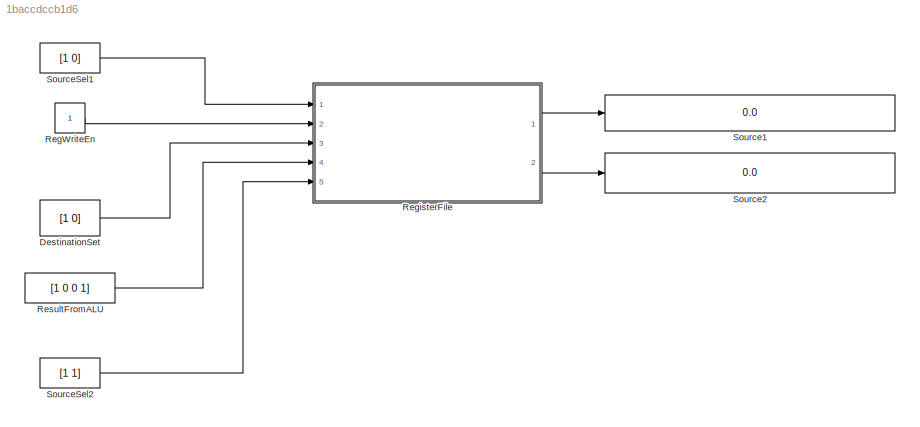
MODEL slx_1baccdccb1d6
KIND model
CONFIG AbsTol = auto
CONFIG EnableMultiTasking = off
CONFIG FixedStep = auto
CONFIG MaxStep = auto
CONFIG MinStep = auto
CONFIG RelTol = 1e-3
CONFIG SampleTimeConstraint = Unconstrained
CONFIG SolverName = VariableStepAuto
CONFIG StartTime = 0.0
CONFIG StopTime = 10.0
BLOCK [Constant] DestinationSet
  Value = [1 0]
BLOCK [Constant] RegWriteEn
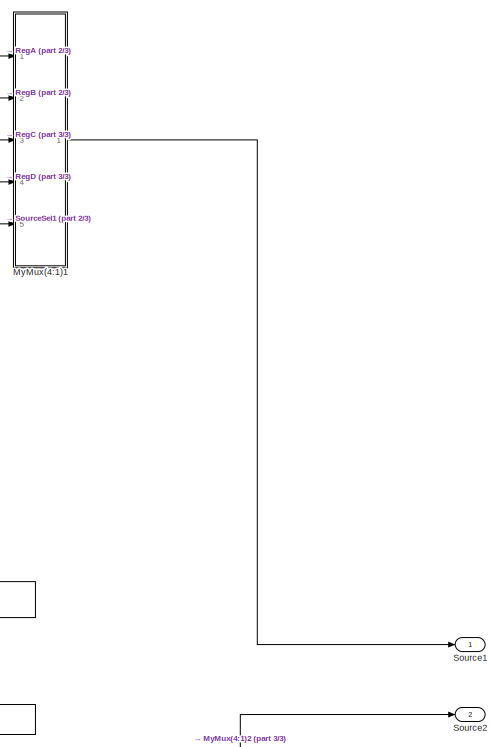
[diagram: RegisterFile - part 1/3, top right region]
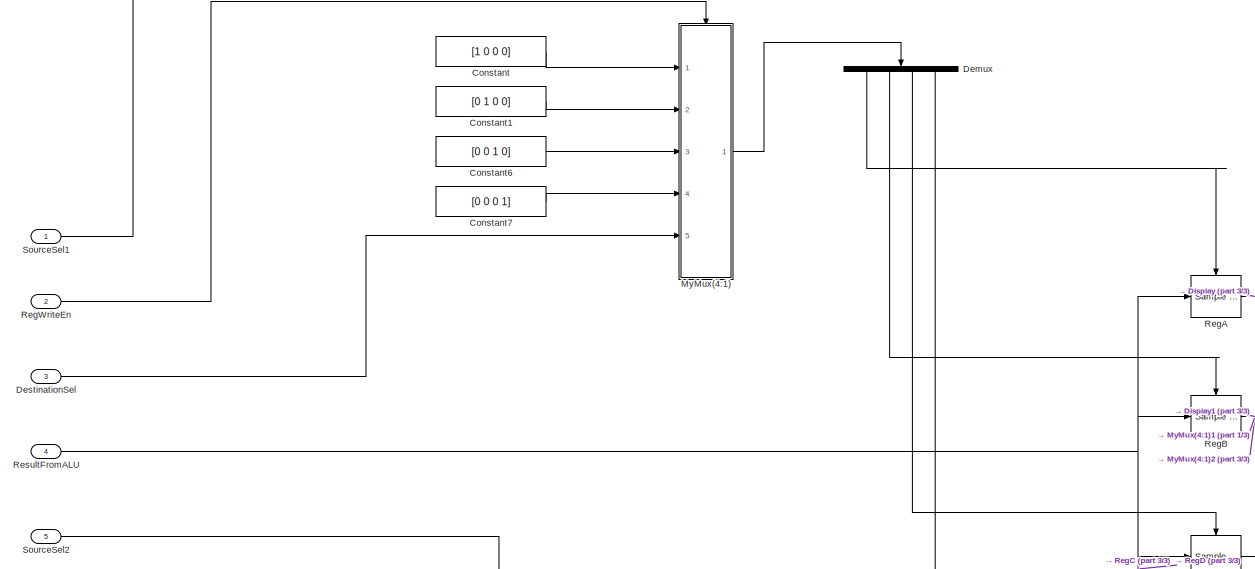
[diagram: RegisterFile - part 2/3, middle left region]
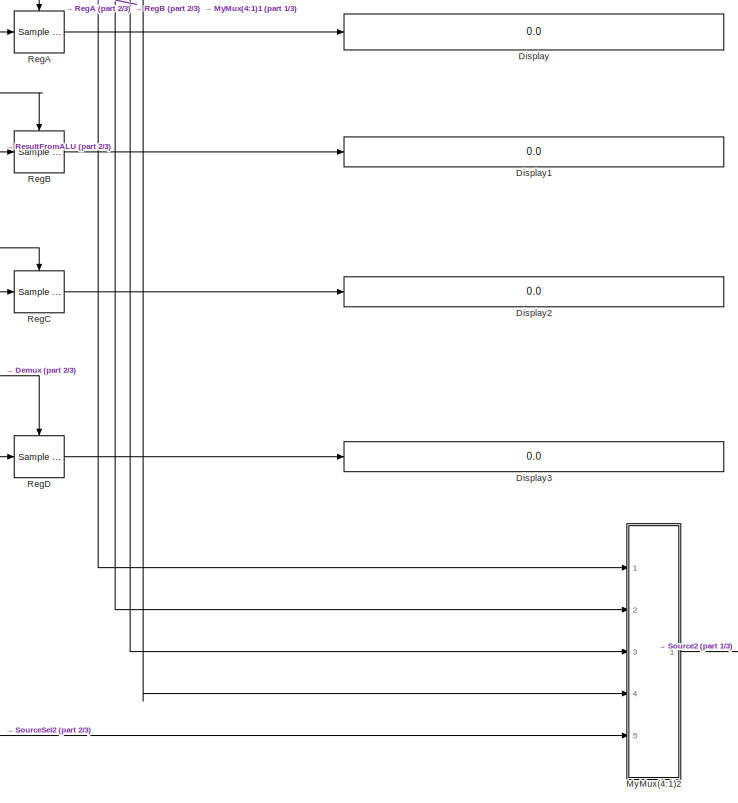
[diagram: RegisterFile - part 3/3, bottom center region]
BLOCK [SubSystem] RegisterFile
  Ports = [5, 2]
  RequestExecContextInheritance = off
BLOCK [Constant] RegisterFile/Constant
  Value = [1 0 0 0]
BLOCK [Constant] RegisterFile/Constant1
  Value = [0 1 0 0]
BLOCK [Constant] RegisterFile/Constant6
  Value = [0 0 1 0]
BLOCK [Constant] RegisterFile/Constant7
  Value = [0 0 0 1]
BLOCK [Demux] RegisterFile/Demux
  NameLocation = left
  Ports = [1, 4]
BLOCK [Inport] RegisterFile/DestinationSel
  Port = 3
BLOCK [Display] RegisterFile/Display
  Decimation = 1
  Ports = [1]
BLOCK [Display] RegisterFile/Display1
  Decimation = 1
  Ports = [1]
BLOCK [Display] RegisterFile/Display2
  Decimation = 1
  Ports = [1]
BLOCK [Display] RegisterFile/Display3
  Decimation = 1
  Ports = [1]
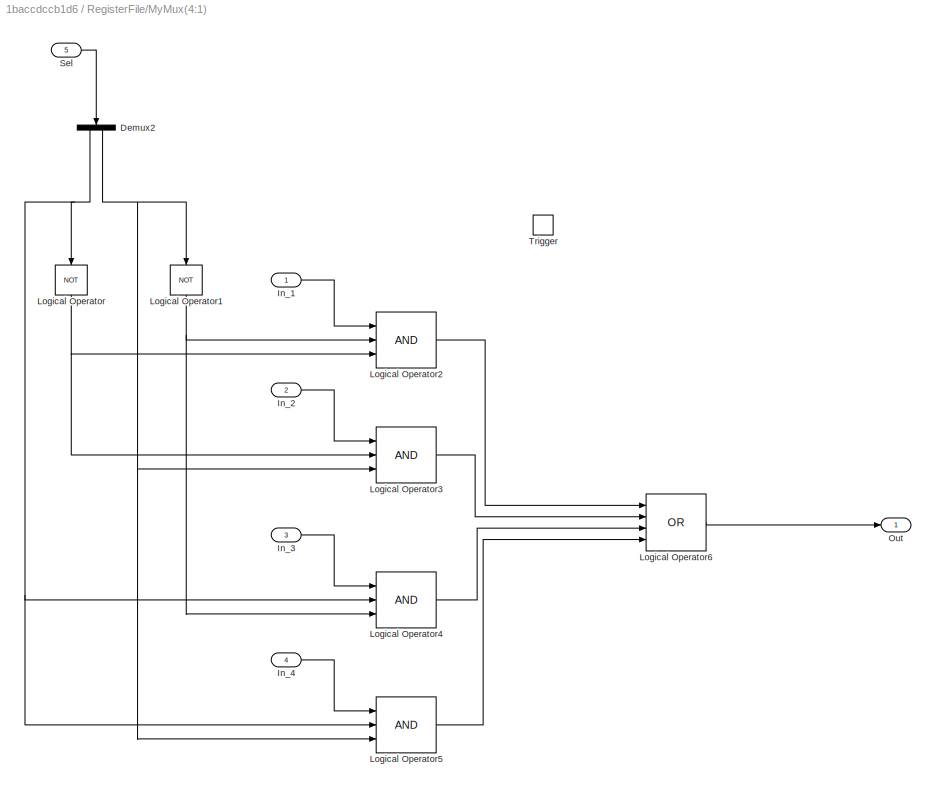
BLOCK [SubSystem] RegisterFile/MyMux(4:1)
  Ports = [5, 1, 0, 1]
  RequestExecContextInheritance = off
BLOCK [Demux] RegisterFile/MyMux(4:1)/Demux2
  NameLocation = left
  Outputs = 2
  Ports = [1, 2]
BLOCK [Inport] RegisterFile/MyMux(4:1)/In_1
BLOCK [Inport] RegisterFile/MyMux(4:1)/In_2
  Port = 2
BLOCK [Inport] RegisterFile/MyMux(4:1)/In_3
  Port = 3
BLOCK [Inport] RegisterFile/MyMux(4:1)/In_4
  Port = 4
BLOCK [Logic] RegisterFile/MyMux(4:1)/Logical Operator
  AllPortsSameDT = off
  NameLocation = left
  Operator = NOT
  OutDataTypeStr = boolean
  Ports = [1, 1]
BLOCK [Logic] RegisterFile/MyMux(4:1)/Logical Operator1
  AllPortsSameDT = off
  NameLocation = left
  Operator = NOT
  OutDataTypeStr = boolean
  Ports = [1, 1]
BLOCK [Logic] RegisterFile/MyMux(4:1)/Logical Operator2
  AllPortsSameDT = off
  Inputs = 3
  OutDataTypeStr = boolean
  Ports = [3, 1]
BLOCK [Logic] RegisterFile/MyMux(4:1)/Logical Operator3
  AllPortsSameDT = off
  Inputs = 3
  OutDataTypeStr = boolean
  Ports = [3, 1]
BLOCK [Logic] RegisterFile/MyMux(4:1)/Logical Operator4
  AllPortsSameDT = off
  Inputs = 3
  OutDataTypeStr = boolean
  Ports = [3, 1]
BLOCK [Logic] RegisterFile/MyMux(4:1)/Logical Operator5
  AllPortsSameDT = off
  Inputs = 3
  OutDataTypeStr = boolean
  Ports = [3, 1]
BLOCK [Logic] RegisterFile/MyMux(4:1)/Logical Operator6
  AllPortsSameDT = off
  Inputs = 4
  Operator = OR
  OutDataTypeStr = boolean
  Ports = [4, 1]
BLOCK [Outport] RegisterFile/MyMux(4:1)/Out
BLOCK [Inport] RegisterFile/MyMux(4:1)/Sel
  Port = 5
BLOCK [TriggerPort] RegisterFile/MyMux(4:1)/Trigger
  PortDimensions = 1
  Ports = []
  StatesWhenEnabling = held
  VariantControl = (inherit)
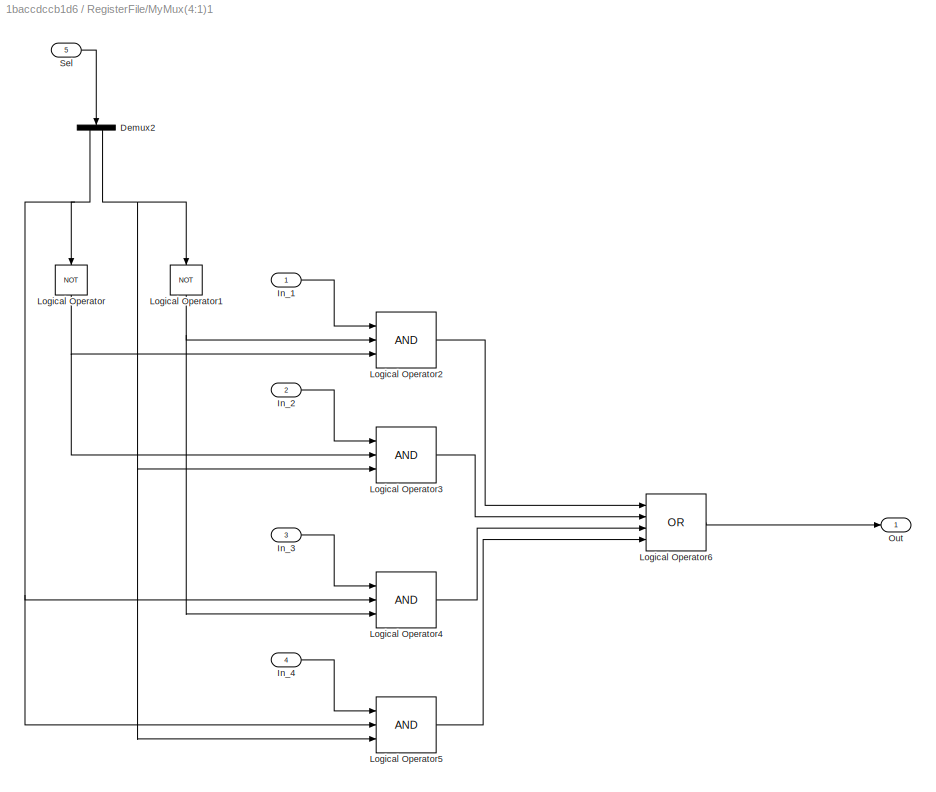
BLOCK [SubSystem] RegisterFile/MyMux(4:1)1
  Ports = [5, 1]
  RequestExecContextInheritance = off
BLOCK [Demux] RegisterFile/MyMux(4:1)1/Demux2
  NameLocation = left
  Outputs = 2
  Ports = [1, 2]
BLOCK [Inport] RegisterFile/MyMux(4:1)1/In_1
BLOCK [Inport] RegisterFile/MyMux(4:1)1/In_2
  Port = 2
BLOCK [Inport] RegisterFile/MyMux(4:1)1/In_3
  Port = 3
BLOCK [Inport] RegisterFile/MyMux(4:1)1/In_4
  Port = 4
BLOCK [Logic] RegisterFile/MyMux(4:1)1/Logical Operator
  AllPortsSameDT = off
  NameLocation = left
  Operator = NOT
  OutDataTypeStr = boolean
  Ports = [1, 1]
BLOCK [Logic] RegisterFile/MyMux(4:1)1/Logical Operator1
  AllPortsSameDT = off
  NameLocation = left
  Operator = NOT
  OutDataTypeStr = boolean
  Ports = [1, 1]
BLOCK [Logic] RegisterFile/MyMux(4:1)1/Logical Operator2
  AllPortsSameDT = off
  Inputs = 3
  OutDataTypeStr = boolean
  Ports = [3, 1]
BLOCK [Logic] RegisterFile/MyMux(4:1)1/Logical Operator3
  AllPortsSameDT = off
  Inputs = 3
  OutDataTypeStr = boolean
  Ports = [3, 1]
BLOCK [Logic] RegisterFile/MyMux(4:1)1/Logical Operator4
  AllPortsSameDT = off
  Inputs = 3
  OutDataTypeStr = boolean
  Ports = [3, 1]
BLOCK [Logic] RegisterFile/MyMux(4:1)1/Logical Operator5
  AllPortsSameDT = off
  Inputs = 3
  OutDataTypeStr = boolean
  Ports = [3, 1]
BLOCK [Logic] RegisterFile/MyMux(4:1)1/Logical Operator6
  AllPortsSameDT = off
  Inputs = 4
  Operator = OR
  OutDataTypeStr = boolean
  Ports = [4, 1]
BLOCK [Outport] RegisterFile/MyMux(4:1)1/Out
BLOCK [Inport] RegisterFile/MyMux(4:1)1/Sel
  Port = 5
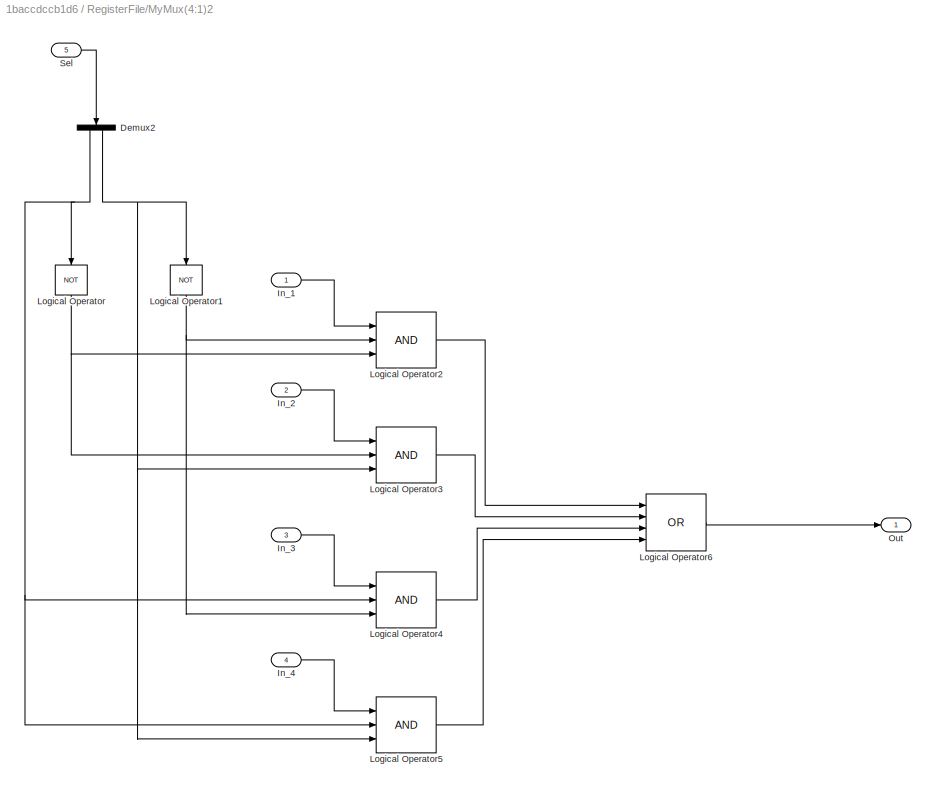
BLOCK [SubSystem] RegisterFile/MyMux(4:1)2
  Ports = [5, 1]
  RequestExecContextInheritance = off
BLOCK [Demux] RegisterFile/MyMux(4:1)2/Demux2
  NameLocation = left
  Outputs = 2
  Ports = [1, 2]
BLOCK [Inport] RegisterFile/MyMux(4:1)2/In_1
BLOCK [Inport] RegisterFile/MyMux(4:1)2/In_2
  Port = 2
BLOCK [Inport] RegisterFile/MyMux(4:1)2/In_3
  Port = 3
BLOCK [Inport] RegisterFile/MyMux(4:1)2/In_4
  Port = 4
BLOCK [Logic] RegisterFile/MyMux(4:1)2/Logical Operator
  AllPortsSameDT = off
  NameLocation = left
  Operator = NOT
  OutDataTypeStr = boolean
  Ports = [1, 1]
BLOCK [Logic] RegisterFile/MyMux(4:1)2/Logical Operator1
  AllPortsSameDT = off
  NameLocation = left
  Operator = NOT
  OutDataTypeStr = boolean
  Ports = [1, 1]
BLOCK [Logic] RegisterFile/MyMux(4:1)2/Logical Operator2
  AllPortsSameDT = off
  Inputs = 3
  OutDataTypeStr = boolean
  Ports = [3, 1]
BLOCK [Logic] RegisterFile/MyMux(4:1)2/Logical Operator3
  AllPortsSameDT = off
  Inputs = 3
  OutDataTypeStr = boolean
  Ports = [3, 1]
BLOCK [Logic] RegisterFile/MyMux(4:1)2/Logical Operator4
  AllPortsSameDT = off
  Inputs = 3
  OutDataTypeStr = boolean
  Ports = [3, 1]
BLOCK [Logic] RegisterFile/MyMux(4:1)2/Logical Operator5
  AllPortsSameDT = off
  Inputs = 3
  OutDataTypeStr = boolean
  Ports = [3, 1]
BLOCK [Logic] RegisterFile/MyMux(4:1)2/Logical Operator6
  AllPortsSameDT = off
  Inputs = 4
  Operator = OR
  OutDataTypeStr = boolean
  Ports = [4, 1]
BLOCK [Outport] RegisterFile/MyMux(4:1)2/Out
BLOCK [Inport] RegisterFile/MyMux(4:1)2/Sel
  Port = 5
BLOCK [Reference] RegisterFile/RegA  REF=dspsigops/Sample
and Hold
  Ports = [1, 1, 0, 1]
  SourceBlock = dspsigops/Sample\nand Hold
  SourceProductBaseCode = DS
  SourceType = Sample and Hold
BLOCK [Reference] RegisterFile/RegB  REF=dspsigops/Sample
and Hold
  Ports = [1, 1, 0, 1]
  SourceBlock = dspsigops/Sample\nand Hold
  SourceProductBaseCode = DS
  SourceType = Sample and Hold
BLOCK [Reference] RegisterFile/RegC  REF=dspsigops/Sample
and Hold
  Ports = [1, 1, 0, 1]
  SourceBlock = dspsigops/Sample\nand Hold
  SourceProductBaseCode = DS
  SourceType = Sample and Hold
BLOCK [Reference] RegisterFile/RegD  REF=dspsigops/Sample
and Hold
  Ports = [1, 1, 0, 1]
  SourceBlock = dspsigops/Sample\nand Hold
  SourceProductBaseCode = DS
  SourceType = Sample and Hold
BLOCK [Inport] RegisterFile/RegWriteEn
  Port = 2
BLOCK [Inport] RegisterFile/ResultFromALU
  Port = 4
BLOCK [Outport] RegisterFile/Source1
BLOCK [Outport] RegisterFile/Source2
  Port = 2
BLOCK [Inport] RegisterFile/SourceSel1
BLOCK [Inport] RegisterFile/SourceSel2
  Port = 5
BLOCK [Constant] ResultFromALU
  Value = [1 0 0 1]
BLOCK [Display] Source1
  Decimation = 1
  Ports = [1]
BLOCK [Display] Source2
  Decimation = 1
  Ports = [1]
BLOCK [Constant] SourceSel1
  Value = [1 0]
BLOCK [Constant] SourceSel2
  Value = [1 1]
LINE DestinationSet:1 -> RegisterFile:3
LINE RegWriteEn:1 -> RegisterFile:2
LINE RegisterFile/Constant1:1 -> RegisterFile/MyMux(4:1):2
LINE RegisterFile/Constant6:1 -> RegisterFile/MyMux(4:1):3
LINE RegisterFile/Constant7:1 -> RegisterFile/MyMux(4:1):4
LINE RegisterFile/Constant:1 -> RegisterFile/MyMux(4:1):1
LINE RegisterFile/Demux:1 -> RegisterFile/RegA:trigger
LINE RegisterFile/Demux:2 -> RegisterFile/RegB:trigger
LINE RegisterFile/Demux:3 -> RegisterFile/RegC:trigger
LINE RegisterFile/Demux:4 -> RegisterFile/RegD:trigger
LINE RegisterFile/DestinationSel:1 -> RegisterFile/MyMux(4:1):5
NET RegisterFile/MyMux(4:1)/Demux2:1 -> RegisterFile/MyMux(4:1)/Logical Operator4:2, RegisterFile/MyMux(4:1)/Logical Operator5:2, RegisterFile/MyMux(4:1)/Logical Operator:1
NET RegisterFile/MyMux(4:1)/Demux2:2 -> RegisterFile/MyMux(4:1)/Logical Operator1:1, RegisterFile/MyMux(4:1)/Logical Operator3:3, RegisterFile/MyMux(4:1)/Logical Operator5:3
LINE RegisterFile/MyMux(4:1)/In_1:1 -> RegisterFile/MyMux(4:1)/Logical Operator2:1
LINE RegisterFile/MyMux(4:1)/In_2:1 -> RegisterFile/MyMux(4:1)/Logical Operator3:1
LINE RegisterFile/MyMux(4:1)/In_3:1 -> RegisterFile/MyMux(4:1)/Logical Operator4:1
LINE RegisterFile/MyMux(4:1)/In_4:1 -> RegisterFile/MyMux(4:1)/Logical Operator5:1
NET RegisterFile/MyMux(4:1)/Logical Operator1:1 -> RegisterFile/MyMux(4:1)/Logical Operator2:2, RegisterFile/MyMux(4:1)/Logical Operator4:3
LINE RegisterFile/MyMux(4:1)/Logical Operator2:1 -> RegisterFile/MyMux(4:1)/Logical Operator6:1
LINE RegisterFile/MyMux(4:1)/Logical Operator3:1 -> RegisterFile/MyMux(4:1)/Logical Operator6:2
LINE RegisterFile/MyMux(4:1)/Logical Operator4:1 -> RegisterFile/MyMux(4:1)/Logical Operator6:3
LINE RegisterFile/MyMux(4:1)/Logical Operator5:1 -> RegisterFile/MyMux(4:1)/Logical Operator6:4
LINE RegisterFile/MyMux(4:1)/Logical Operator6:1 -> RegisterFile/MyMux(4:1)/Out:1
NET RegisterFile/MyMux(4:1)/Logical Operator:1 -> RegisterFile/MyMux(4:1)/Logical Operator2:3, RegisterFile/MyMux(4:1)/Logical Operator3:2
LINE RegisterFile/MyMux(4:1)/Sel:1 -> RegisterFile/MyMux(4:1)/Demux2:1
NET RegisterFile/MyMux(4:1)1/Demux2:1 -> RegisterFile/MyMux(4:1)1/Logical Operator4:2, RegisterFile/MyMux(4:1)1/Logical Operator5:2, RegisterFile/MyMux(4:1)1/Logical Operator:1
NET RegisterFile/MyMux(4:1)1/Demux2:2 -> RegisterFile/MyMux(4:1)1/Logical Operator1:1, RegisterFile/MyMux(4:1)1/Logical Operator3:3, RegisterFile/MyMux(4:1)1/Logical Operator5:3
LINE RegisterFile/MyMux(4:1)1/In_1:1 -> RegisterFile/MyMux(4:1)1/Logical Operator2:1
LINE RegisterFile/MyMux(4:1)1/In_2:1 -> RegisterFile/MyMux(4:1)1/Logical Operator3:1
LINE RegisterFile/MyMux(4:1)1/In_3:1 -> RegisterFile/MyMux(4:1)1/Logical Operator4:1
LINE RegisterFile/MyMux(4:1)1/In_4:1 -> RegisterFile/MyMux(4:1)1/Logical Operator5:1
NET RegisterFile/MyMux(4:1)1/Logical Operator1:1 -> RegisterFile/MyMux(4:1)1/Logical Operator2:2, RegisterFile/MyMux(4:1)1/Logical Operator4:3
LINE RegisterFile/MyMux(4:1)1/Logical Operator2:1 -> RegisterFile/MyMux(4:1)1/Logical Operator6:1
LINE RegisterFile/MyMux(4:1)1/Logical Operator3:1 -> RegisterFile/MyMux(4:1)1/Logical Operator6:2
LINE RegisterFile/MyMux(4:1)1/Logical Operator4:1 -> RegisterFile/MyMux(4:1)1/Logical Operator6:3
LINE RegisterFile/MyMux(4:1)1/Logical Operator5:1 -> RegisterFile/MyMux(4:1)1/Logical Operator6:4
LINE RegisterFile/MyMux(4:1)1/Logical Operator6:1 -> RegisterFile/MyMux(4:1)1/Out:1
NET RegisterFile/MyMux(4:1)1/Logical Operator:1 -> RegisterFile/MyMux(4:1)1/Logical Operator2:3, RegisterFile/MyMux(4:1)1/Logical Operator3:2
LINE RegisterFile/MyMux(4:1)1/Sel:1 -> RegisterFile/MyMux(4:1)1/Demux2:1
LINE RegisterFile/MyMux(4:1)1:1 -> RegisterFile/Source1:1
NET RegisterFile/MyMux(4:1)2/Demux2:1 -> RegisterFile/MyMux(4:1)2/Logical Operator4:2, RegisterFile/MyMux(4:1)2/Logical Operator5:2, RegisterFile/MyMux(4:1)2/Logical Operator:1
NET RegisterFile/MyMux(4:1)2/Demux2:2 -> RegisterFile/MyMux(4:1)2/Logical Operator1:1, RegisterFile/MyMux(4:1)2/Logical Operator3:3, RegisterFile/MyMux(4:1)2/Logical Operator5:3
LINE RegisterFile/MyMux(4:1)2/In_1:1 -> RegisterFile/MyMux(4:1)2/Logical Operator2:1
LINE RegisterFile/MyMux(4:1)2/In_2:1 -> RegisterFile/MyMux(4:1)2/Logical Operator3:1
LINE RegisterFile/MyMux(4:1)2/In_3:1 -> RegisterFile/MyMux(4:1)2/Logical Operator4:1
LINE RegisterFile/MyMux(4:1)2/In_4:1 -> RegisterFile/MyMux(4:1)2/Logical Operator5:1
NET RegisterFile/MyMux(4:1)2/Logical Operator1:1 -> RegisterFile/MyMux(4:1)2/Logical Operator2:2, RegisterFile/MyMux(4:1)2/Logical Operator4:3
LINE RegisterFile/MyMux(4:1)2/Logical Operator2:1 -> RegisterFile/MyMux(4:1)2/Logical Operator6:1
LINE RegisterFile/MyMux(4:1)2/Logical Operator3:1 -> RegisterFile/MyMux(4:1)2/Logical Operator6:2
LINE RegisterFile/MyMux(4:1)2/Logical Operator4:1 -> RegisterFile/MyMux(4:1)2/Logical Operator6:3
LINE RegisterFile/MyMux(4:1)2/Logical Operator5:1 -> RegisterFile/MyMux(4:1)2/Logical Operator6:4
LINE RegisterFile/MyMux(4:1)2/Logical Operator6:1 -> RegisterFile/MyMux(4:1)2/Out:1
NET RegisterFile/MyMux(4:1)2/Logical Operator:1 -> RegisterFile/MyMux(4:1)2/Logical Operator2:3, RegisterFile/MyMux(4:1)2/Logical Operator3:2
LINE RegisterFile/MyMux(4:1)2/Sel:1 -> RegisterFile/MyMux(4:1)2/Demux2:1
LINE RegisterFile/MyMux(4:1)2:1 -> RegisterFile/Source2:1
LINE RegisterFile/MyMux(4:1):1 -> RegisterFile/Demux:1
NET RegisterFile/RegA:1 -> RegisterFile/Display:1, RegisterFile/MyMux(4:1)1:1, RegisterFile/MyMux(4:1)2:1
NET RegisterFile/RegB:1 -> RegisterFile/Display1:1, RegisterFile/MyMux(4:1)1:2, RegisterFile/MyMux(4:1)2:2
NET RegisterFile/RegC:1 -> RegisterFile/Display2:1, RegisterFile/MyMux(4:1)1:3, RegisterFile/MyMux(4:1)2:3
NET RegisterFile/RegD:1 -> RegisterFile/Display3:1, RegisterFile/MyMux(4:1)1:4, RegisterFile/MyMux(4:1)2:4
LINE RegisterFile/RegWriteEn:1 -> RegisterFile/MyMux(4:1):trigger
NET RegisterFile/ResultFromALU:1 -> RegisterFile/RegA:1, RegisterFile/RegB:1, RegisterFile/RegC:1, RegisterFile/RegD:1
LINE RegisterFile/SourceSel1:1 -> RegisterFile/MyMux(4:1)1:5
LINE RegisterFile/SourceSel2:1 -> RegisterFile/MyMux(4:1)2:5
LINE RegisterFile:1 -> Source1:1
LINE RegisterFile:2 -> Source2:1
LINE ResultFromALU:1 -> RegisterFile:4
LINE SourceSel1:1 -> RegisterFile:1
LINE SourceSel2:1 -> RegisterFile:5
note: NET lines group one-source signal fan-out (src -> all destinations, sorted); 1:1 wires keep LINE
